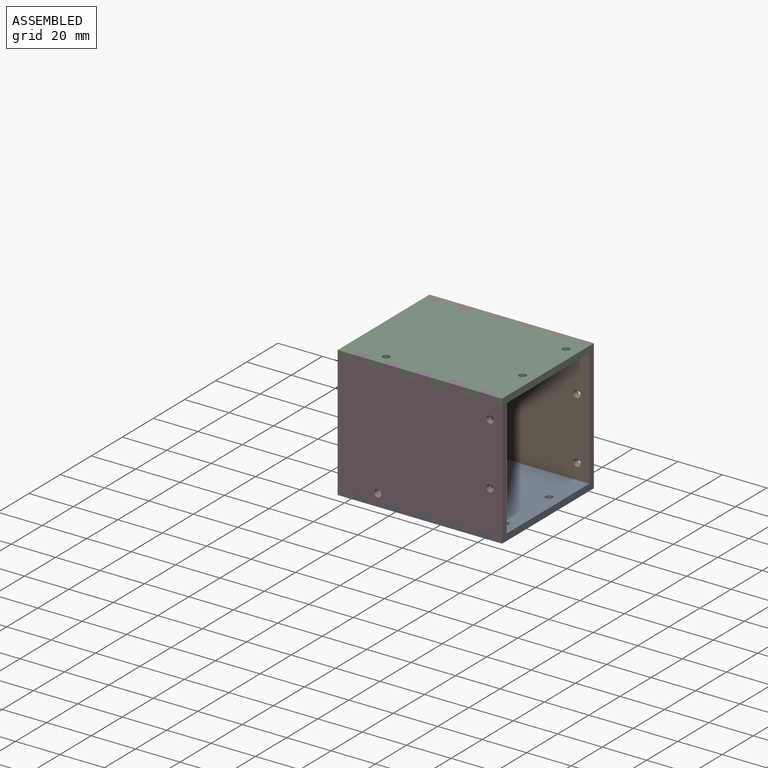
[diagram: assembled view]
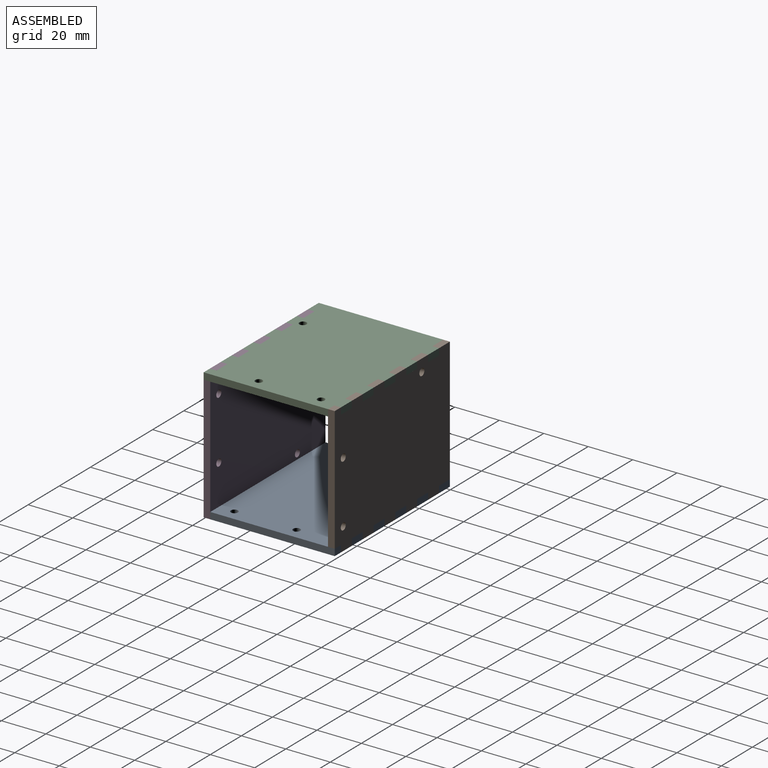
[diagram: assembled view, second angle]
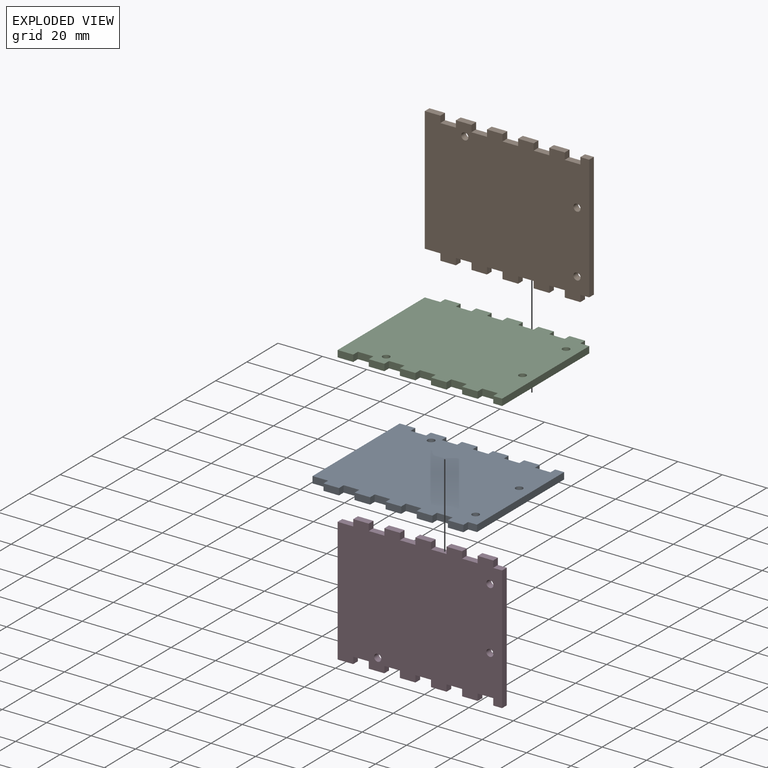
[diagram: exploded view]
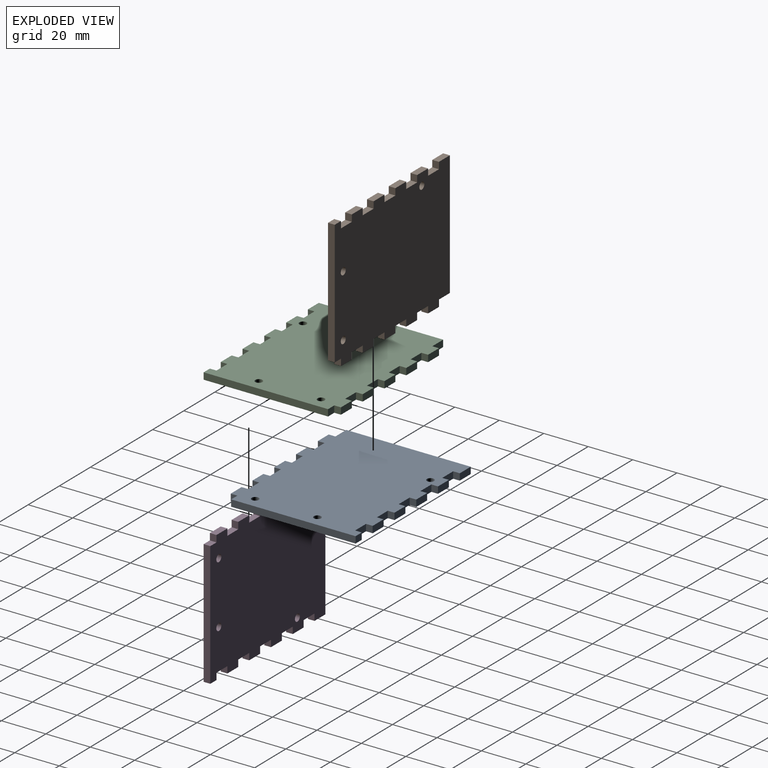
[diagram: exploded view, second angle]
ASSEMBLY  parts=4 mates=3
PART A: 49 faces, bbox 74x59x3 mm
  f0: plane 56x3mm, normal (-1,0,0), area 168mm2, adj f1,f46,f47,f48
  f1: plane 7x3mm, normal (0,-1,0), area 21mm2, adj f0,f2,f47,f48
  f2: plane 3x3mm, normal (-1,0,0), area 9mm2, adj f1,f3,f47,f48
  f3: plane 7x3mm, normal (0,-1,0), area 21mm2, adj f2,f4,f47,f48
  f4: plane 3x3mm, normal (1,0,0), area 9mm2, adj f3,f5,f47,f48
  f5: plane 7x3mm, normal (0,-1,0), area 21mm2, adj f4,f6,f47,f48
  f6: plane 3x3mm, normal (-1,0,0), area 9mm2, adj f5,f7,f47,f48
  f7: plane 7x3mm, normal (0,-1,0), area 21mm2, adj f6,f8,f47,f48
  f8: plane 3x3mm, normal (1,0,0), area 9mm2, adj f7,f9,f47,f48
  f9: plane 7x3mm, normal (0,-1,0), area 21mm2, adj f8,f10,f47,f48
  f10: plane 3x3mm, normal (-1,0,0), area 9mm2, adj f9,f11,f47,f48
  f11: plane 7x3mm, normal (0,-1,0), area 21mm2, adj f10,f12,f47,f48
  f12: plane 3x3mm, normal (1,0,0), area 9mm2, adj f11,f13,f47,f48
  f13: plane 7x3mm, normal (0,-1,0), area 21mm2, adj f12,f14,f47,f48
  f14: plane 3x3mm, normal (-1,0,0), area 9mm2, adj f13,f15,f47,f48
  f15: plane 7x3mm, normal (0,-1,0), area 21mm2, adj f14,f16,f47,f48
  f16: plane 3x3mm, normal (1,0,0), area 9mm2, adj f15,f17,f47,f48
  f17: plane 7x3mm, normal (0,-1,0), area 21mm2, adj f16,f18,f47,f48
  f18: plane 3x3mm, normal (-1,0,0), area 9mm2, adj f17,f19,f47,f48
  f19: plane 7x3mm, normal (0,-1,0), area 21mm2, adj f18,f20,f47,f48
  f20: plane 3x3mm, normal (1,0,0), area 9mm2, adj f19,f21,f47,f48
  f21: plane 4x3mm, normal (0,-1,0), area 12mm2, adj f20,f22,f47,f48
  f22: plane 56x3mm, normal (1,0,0), area 168mm2, adj f21,f23,f47,f48
  f23: plane 4x3mm, normal (0,1,0), area 12mm2, adj f22,f24,f47,f48
  f24: plane 3x3mm, normal (-1,0,0), area 9mm2, adj f23,f25,f47,f48
  f25: plane 7x3mm, normal (0,1,0), area 21mm2, adj f24,f26,f47,f48
  f26: plane 3x3mm, normal (1,0,0), area 9mm2, adj f25,f27,f47,f48
  f27: plane 7x3mm, normal (0,1,0), area 21mm2, adj f26,f28,f47,f48
  f28: plane 3x3mm, normal (-1,0,0), area 9mm2, adj f27,f29,f47,f48
  f29: plane 7x3mm, normal (0,1,0), area 21mm2, adj f28,f30,f47,f48
  f30: plane 3x3mm, normal (1,0,0), area 9mm2, adj f29,f31,f47,f48
  f31: plane 7x3mm, normal (0,1,0), area 21mm2, adj f30,f32,f47,f48
  f32: plane 3x3mm, normal (-1,0,0), area 9mm2, adj f31,f33,f47,f48
  f33: plane 7x3mm, normal (0,1,0), area 21mm2, adj f32,f34,f47,f48
  f34: plane 3x3mm, normal (1,0,0), area 9mm2, adj f33,f35,f47,f48
  f35: plane 7x3mm, normal (0,1,0), area 21mm2, adj f34,f36,f47,f48
  f36: plane 3x3mm, normal (-1,0,0), area 9mm2, adj f35,f37,f47,f48
  f37: plane 7x3mm, normal (0,1,0), area 21mm2, adj f36,f38,f47,f48
  f38: plane 3x3mm, normal (1,0,0), area 9mm2, adj f37,f39,f47,f48
  f39: plane 7x3mm, normal (0,1,0), area 21mm2, adj f38,f40,f47,f48
  f40: plane 3x3mm, normal (-1,0,0), area 9mm2, adj f39,f41,f47,f48
  f41: plane 7x3mm, normal (0,1,0), area 21mm2, adj f40,f42,f47,f48
  f42: plane 3x3mm, normal (1,0,0), area 9mm2, adj f41,f46,f47,f48
  f43: cylinder r=1.6mm len=3.2mm, axis (0,0,-1), area 30.2mm2, adj f47,f48
  f44: cylinder r=1.6mm len=3.2mm, axis (0,0,-1), area 30.2mm2, adj f47,f48
  f45: cylinder r=1.6mm len=3.2mm, axis (0,0,-1), area 30.2mm2, adj f47,f48
  f46: plane 7x3mm, normal (0,1,0), area 21mm2, adj f0,f42,f47,f48
  f47: plane 74x59mm, normal (0,0,1), area 4119.9mm2, adj f0,f1,f2,f3,f4,f5,f6,f7
  f48: plane 74x59mm, normal (0,0,-1), area 4119.9mm2, adj f0,f1,f2,f3,f4,f5,f6,f7
PART B: same geometry as A
PART C: same geometry as A
PART D: same geometry as A
PLACE A t=(15.39,-26.81,9.42)mm
PLACE B rot(axis=(1,0,0),90deg) t=(15.39,2.69,38.92)mm
PLACE C rot(axis=(-1,0,0),180deg) t=(15.39,-26.81,68.42)mm
PLACE D rot(axis=(-1,0,0),90deg) t=(15.39,-56.31,38.92)mm
MATE fastened C.f42 <-> D.f2  axis (1,0,0) through (-14.61,-54.81,66.92)mm
MATE fastened B.f20 <-> A.f24  axis (1,0,0) through (48.39,1.19,10.92)mm
MATE fastened A.f2 <-> D.f42  axis (-1,0,0) through (-14.61,-54.81,10.92)mm
